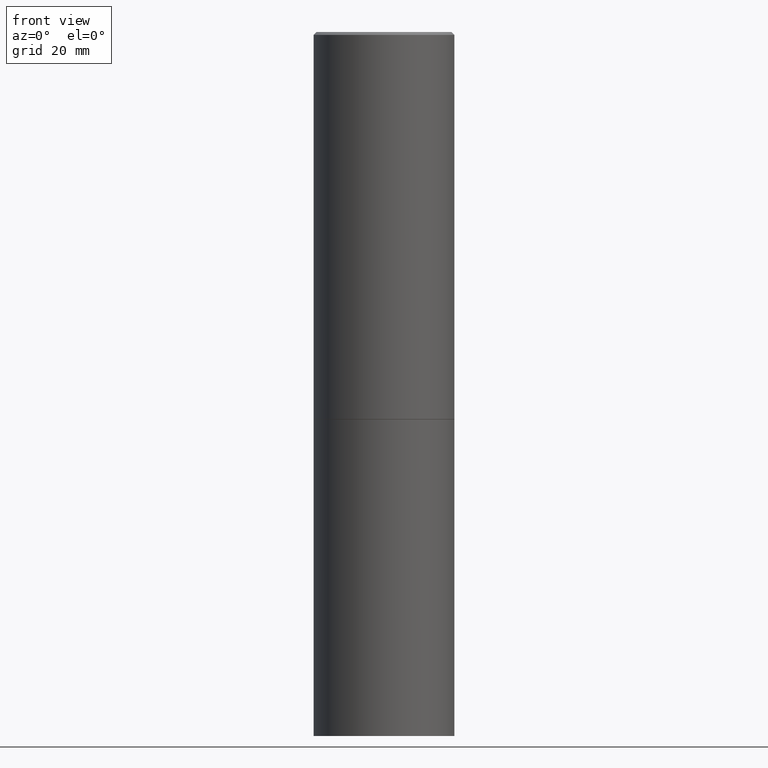
[diagram: clean part render]
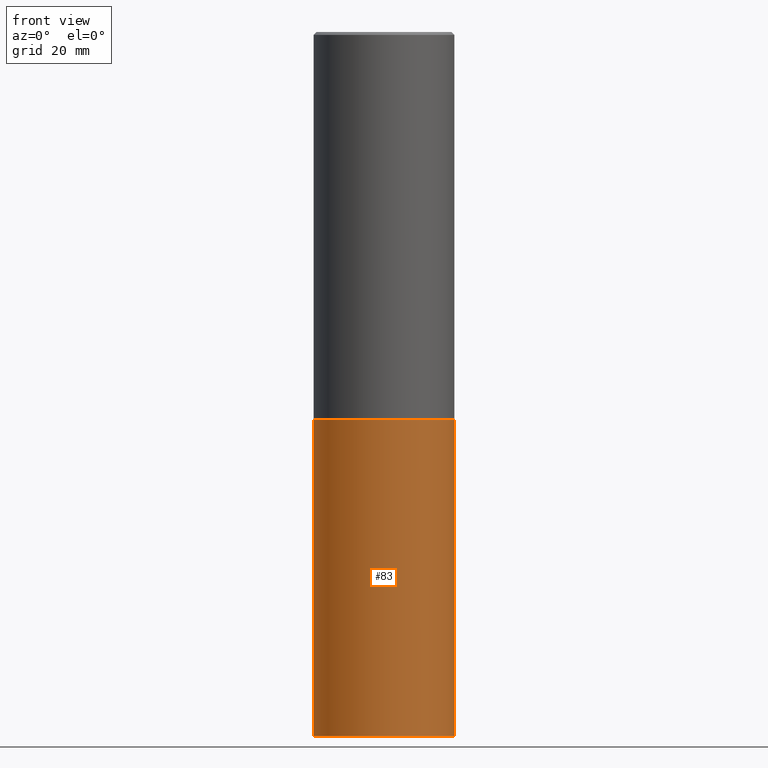
[diagram: same view with one face highlighted and labeled with its STEP entity id]
A machine part, front view. The second image highlights one B-rep face of the part: STEP entity #83.
In plain terms, the highlighted cylindrical surface (partial cylindrical patch) has radius 12.7 mm, axis along (-0, 0, 1).
Its self-contained STEP definition (entity closure, byte-faithful):
#12 = ORIENTED_EDGE ( 'NONE', *, *, #196, .F. ) ;
#13 = DIRECTION ( 'NONE',  ( 1.000000000000000000, -6.982962677686266711E-15, 4.876176775795935793E-29 ) ) ;
#19 = DIRECTION ( 'NONE',  ( -2.445468806185136877E-29, 3.491481338843145188E-15, 1.000000000000000000 ) ) ;
#24 = LINE ( 'NONE', #138, #142 ) ;
#25 = VERTEX_POINT ( 'NONE', #66 ) ;
#32 = FACE_OUTER_BOUND ( 'NONE', #239, .T. ) ;
#37 = CIRCLE ( 'NONE', #107, 0.5000000000000000000 ) ;
#42 = CARTESIAN_POINT ( 'NONE',  ( 1.222734403092568523E-28, -1.745740669421572989E-14, -5.000000000000000000 ) ) ;
#49 = CARTESIAN_POINT ( 'NONE',  ( 0.5000000000000000000, -3.491481338843133355E-15, 2.438088387897967896E-29 ) ) ;
#50 = EDGE_CURVE ( 'NONE', #222, #25, #200, .T. ) ;
#65 = CARTESIAN_POINT ( 'NONE',  ( 0.000000000000000000, 0.000000000000000000, 0.000000000000000000 ) ) ;
#66 = CARTESIAN_POINT ( 'NONE',  ( 0.5000000000000000000, -2.094888803305886324E-14, -5.000000000000000000 ) ) ;
#82 = LINE ( 'NONE', #49, #271 ) ;
#83 = ADVANCED_FACE ( 'NONE', ( #32 ), #145, .T. ) ;
#107 = AXIS2_PLACEMENT_3D ( 'NONE', #259, #167, #168 ) ;
#138 = CARTESIAN_POINT ( 'NONE',  ( -0.5000000000000000000, 3.552713678800500929E-15, -2.459467545127452891E-29 ) ) ;
#140 = EDGE_CURVE ( 'NONE', #222, #313, #24, .T. ) ;
#142 = VECTOR ( 'NONE', #261, 39.37007874015748143 ) ;
#145 = CYLINDRICAL_SURFACE ( 'NONE', #231, 0.5000000000000000000 ) ;
#149 = ORIENTED_EDGE ( 'NONE', *, *, #140, .F. ) ;
#150 = DIRECTION ( 'NONE',  ( 1.000000000000000000, -6.982962677686266711E-15, 0.000000000000000000 ) ) ;
#163 = ORIENTED_EDGE ( 'NONE', *, *, #50, .T. ) ;
#165 = CARTESIAN_POINT ( 'NONE',  ( -0.5000000000000000000, -9.976776509216688154E-15, -2.750000000000000000 ) ) ;
#167 = DIRECTION ( 'NONE',  ( -2.445468806185136597E-29, 3.491481338843145583E-15, 1.000000000000000000 ) ) ;
#168 = DIRECTION ( 'NONE',  ( 1.000000000000000000, -6.982962677686266711E-15, 0.000000000000000000 ) ) ;
#190 = AXIS2_PLACEMENT_3D ( 'NONE', #42, #354, #150 ) ;
#196 = EDGE_CURVE ( 'NONE', #313, #212, #37, .T. ) ;
#200 = CIRCLE ( 'NONE', #190, 0.5000000000000000000 ) ;
#212 = VERTEX_POINT ( 'NONE', #254 ) ;
#222 = VERTEX_POINT ( 'NONE', #226 ) ;
#226 = CARTESIAN_POINT ( 'NONE',  ( -0.5000000000000000000, -9.976776509216688154E-15, -5.000000000000000000 ) ) ;
#229 = EDGE_CURVE ( 'NONE', #25, #212, #82, .T. ) ;
#231 = AXIS2_PLACEMENT_3D ( 'NONE', #65, #233, #13 ) ;
#233 = DIRECTION ( 'NONE',  ( -2.445468806185136597E-29, 3.491481338843145583E-15, 1.000000000000000000 ) ) ;
#239 = EDGE_LOOP ( 'NONE', ( #149, #163, #305, #12 ) ) ;
#254 = CARTESIAN_POINT ( 'NONE',  ( 0.5000000000000000000, -1.309305502066178321E-14, -2.750000000000000000 ) ) ;
#259 = CARTESIAN_POINT ( 'NONE',  ( 6.725039217009124520E-29, -9.601573681818649859E-15, -2.750000000000000000 ) ) ;
#261 = DIRECTION ( 'NONE',  ( -2.445468806185136877E-29, 3.491481338843145188E-15, 1.000000000000000000 ) ) ;
#271 = VECTOR ( 'NONE', #19, 39.37007874015748143 ) ;
#305 = ORIENTED_EDGE ( 'NONE', *, *, #229, .T. ) ;
#313 = VERTEX_POINT ( 'NONE', #165 ) ;
#354 = DIRECTION ( 'NONE',  ( -2.445468806185136597E-29, 3.491481338843145583E-15, 1.000000000000000000 ) ) ;